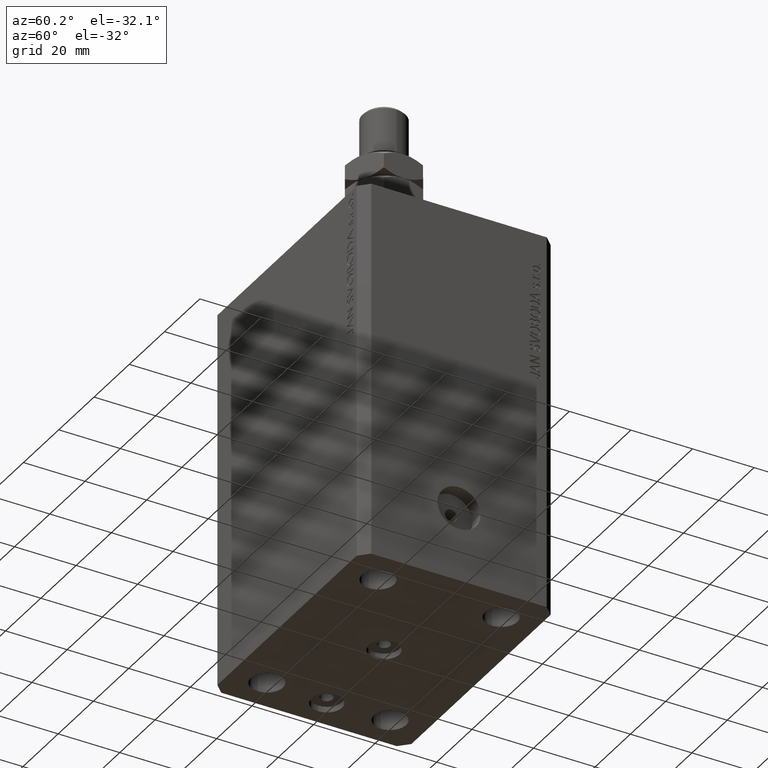
[diagram: clean part render]
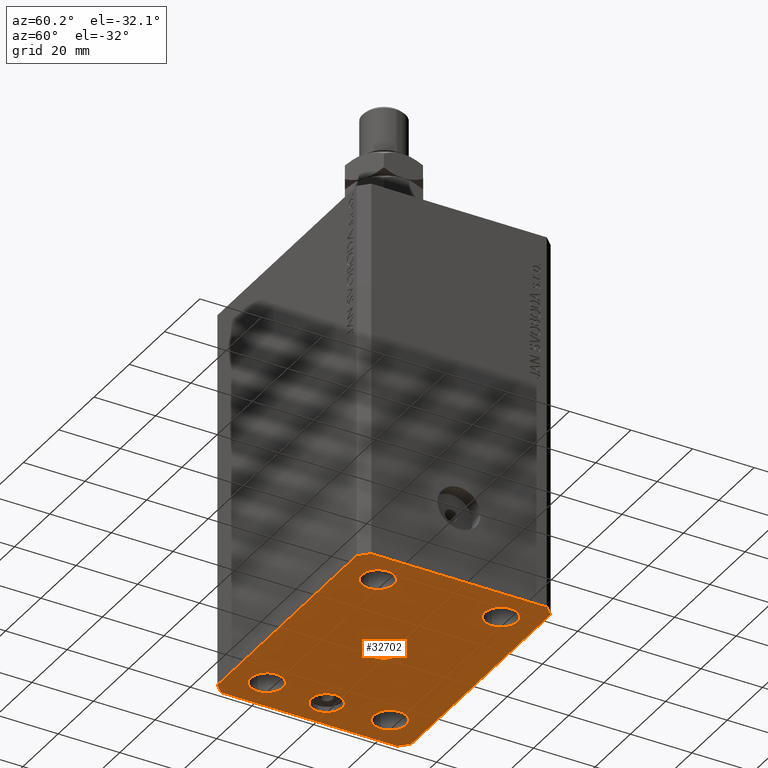
[diagram: same view with one face highlighted and labeled with its STEP entity id]
A machine part, auxiliary view. The second image highlights one B-rep face of the part: STEP entity #32702.
In plain terms, the highlighted planar face has unit normal (0, 0, 1).
Its self-contained STEP definition (entity closure, byte-faithful):
#54 = ORIENTED_EDGE ( 'NONE', *, *, #22529, .F. ) ;
#489 = ORIENTED_EDGE ( 'NONE', *, *, #44058, .F. ) ;
#1094 = CARTESIAN_POINT ( 'NONE',  ( 26.24999999999999645, -20.00000000000000355, -123.0000000000000000 ) ) ;
#1639 = CARTESIAN_POINT ( 'NONE',  ( 42.50000000000000711, -28.50000000000000355, -123.0000000000000000 ) ) ;
#1753 = CIRCLE ( 'NONE', #3247, 5.250000000000000888 ) ;
#1920 = CARTESIAN_POINT ( 'NONE',  ( 42.50000000000051870, 28.49999999999995381, -123.0000000000000000 ) ) ;
#2435 = DIRECTION ( 'NONE',  ( 1.000000000000000000, 0.000000000000000000, 0.000000000000000000 ) ) ;
#2881 = CIRCLE ( 'NONE', #45403, 5.000000000000000000 ) ;
#2909 = AXIS2_PLACEMENT_3D ( 'NONE', #22561, #41434, #5262 ) ;
#2976 = VECTOR ( 'NONE', #9412, 1000.000000000000000 ) ;
#3247 = AXIS2_PLACEMENT_3D ( 'NONE', #10179, #24424, #20927 ) ;
#3317 = DIRECTION ( 'NONE',  ( -0.7071067811865356934, 0.7071067811865594521, 0.000000000000000000 ) ) ;
#3481 = DIRECTION ( 'NONE',  ( -0.000000000000000000, -0.000000000000000000, -1.000000000000000000 ) ) ;
#3857 = CARTESIAN_POINT ( 'NONE',  ( 26.25000000000000355, 19.99999999999999289, -123.0000000000000000 ) ) ;
#4416 = DIRECTION ( 'NONE',  ( -1.000000000000000000, 0.000000000000000000, 0.000000000000000000 ) ) ;
#5090 = VERTEX_POINT ( 'NONE', #23461 ) ;
#5262 = DIRECTION ( 'NONE',  ( 1.000000000000000000, 0.000000000000000000, -0.000000000000000000 ) ) ;
#5268 = ORIENTED_EDGE ( 'NONE', *, *, #13209, .F. ) ;
#5459 = DIRECTION ( 'NONE',  ( 1.000000000000000000, 0.000000000000000000, 0.000000000000000000 ) ) ;
#5490 = CARTESIAN_POINT ( 'NONE',  ( -42.50000000000000000, -28.50000000000000000, -123.0000000000000000 ) ) ;
#5676 = LINE ( 'NONE', #12918, #2976 ) ;
#5907 = AXIS2_PLACEMENT_3D ( 'NONE', #26494, #40719, #5459 ) ;
#6576 = AXIS2_PLACEMENT_3D ( 'NONE', #20914, #32112, #14368 ) ;
#6833 = VERTEX_POINT ( 'NONE', #43114 ) ;
#7186 = VERTEX_POINT ( 'NONE', #41914 ) ;
#7369 = LINE ( 'NONE', #13920, #22624 ) ;
#7446 = DIRECTION ( 'NONE',  ( 1.000000000000000000, 0.000000000000000000, 0.000000000000000000 ) ) ;
#7850 = FACE_BOUND ( 'NONE', #30016, .T. ) ;
#8305 = PLANE ( 'NONE',  #2909 ) ;
#8360 = CARTESIAN_POINT ( 'NONE',  ( -32.50000000000000000, 0.000000000000000000, -123.0000000000000000 ) ) ;
#9412 = DIRECTION ( 'NONE',  ( -0.7071067811865471286, -0.7071067811865479058, 0.000000000000000000 ) ) ;
#9806 = AXIS2_PLACEMENT_3D ( 'NONE', #26448, #39989, #29250 ) ;
#10179 = CARTESIAN_POINT ( 'NONE',  ( -31.49999999999999289, -20.00000000000000355, -123.0000000000000000 ) ) ;
#10253 = CARTESIAN_POINT ( 'NONE',  ( -36.74999999999999289, -20.00000000000000355, -123.0000000000000000 ) ) ;
#10389 = ORIENTED_EDGE ( 'NONE', *, *, #42976, .F. ) ;
#10450 = DIRECTION ( 'NONE',  ( -0.000000000000000000, -0.000000000000000000, -1.000000000000000000 ) ) ;
#10624 = VERTEX_POINT ( 'NONE', #3857 ) ;
#11213 = VECTOR ( 'NONE', #3317, 1000.000000000000114 ) ;
#11355 = FACE_BOUND ( 'NONE', #25834, .T. ) ;
#11600 = VERTEX_POINT ( 'NONE', #31715 ) ;
#11639 = DIRECTION ( 'NONE',  ( -1.000000000000000000, 0.000000000000000000, 0.000000000000000000 ) ) ;
#11950 = AXIS2_PLACEMENT_3D ( 'NONE', #26626, #22671, #29659 ) ;
#12184 = CARTESIAN_POINT ( 'NONE',  ( -42.50000000000000000, -28.50000000000000000, -123.0000000000000000 ) ) ;
#12605 = CIRCLE ( 'NONE', #5907, 5.250000000000000888 ) ;
#12918 = CARTESIAN_POINT ( 'NONE',  ( -39.50000000000000711, 31.50000000000000000, -123.0000000000000000 ) ) ;
#13033 = ORIENTED_EDGE ( 'NONE', *, *, #16749, .F. ) ;
#13105 = CARTESIAN_POINT ( 'NONE',  ( -27.50000000000000355, 6.123233995736762338E-16, -123.0000000000000000 ) ) ;
#13209 = EDGE_CURVE ( 'NONE', #34795, #6833, #2881, .T. ) ;
#13368 = CARTESIAN_POINT ( 'NONE',  ( 0.000000000000000000, 0.000000000000000000, -123.0000000000000000 ) ) ;
#13471 = EDGE_CURVE ( 'NONE', #43988, #17608, #12605, .T. ) ;
#13590 = ORIENTED_EDGE ( 'NONE', *, *, #18170, .F. ) ;
#13920 = CARTESIAN_POINT ( 'NONE',  ( -42.50000000000000000, 28.50000000000000000, -123.0000000000000000 ) ) ;
#14085 = DIRECTION ( 'NONE',  ( 8.886653596232072440E-15, 1.000000000000000000, 0.000000000000000000 ) ) ;
#14368 = DIRECTION ( 'NONE',  ( 1.000000000000000000, 0.000000000000000000, 0.000000000000000000 ) ) ;
#14816 = ORIENTED_EDGE ( 'NONE', *, *, #13471, .F. ) ;
#15254 = ORIENTED_EDGE ( 'NONE', *, *, #21363, .F. ) ;
#16224 = LINE ( 'NONE', #5490, #40204 ) ;
#16257 = EDGE_CURVE ( 'NONE', #24549, #43728, #45577, .T. ) ;
#16454 = EDGE_LOOP ( 'NONE', ( #15254, #489 ) ) ;
#16497 = EDGE_CURVE ( 'NONE', #42942, #33513, #32081, .T. ) ;
#16662 = CARTESIAN_POINT ( 'NONE',  ( 31.49999999999999289, -20.00000000000000355, -123.0000000000000000 ) ) ;
#16749 = EDGE_CURVE ( 'NONE', #28639, #5090, #26876, .T. ) ;
#17041 = EDGE_LOOP ( 'NONE', ( #29261, #41668 ) ) ;
#17054 = EDGE_CURVE ( 'NONE', #6833, #34795, #20179, .T. ) ;
#17403 = LINE ( 'NONE', #21369, #20945 ) ;
#17444 = ORIENTED_EDGE ( 'NONE', *, *, #17054, .F. ) ;
#17491 = CARTESIAN_POINT ( 'NONE',  ( 31.50000000000000000, 19.99999999999999289, -123.0000000000000000 ) ) ;
#17608 = VERTEX_POINT ( 'NONE', #24470 ) ;
#17864 = DIRECTION ( 'NONE',  ( 0.7071067811865483499, 0.7071067811865466846, 0.000000000000000000 ) ) ;
#18170 = EDGE_CURVE ( 'NONE', #42608, #24854, #17403, .T. ) ;
#18579 = FACE_BOUND ( 'NONE', #17041, .T. ) ;
#18966 = CARTESIAN_POINT ( 'NONE',  ( -36.75000000000000000, 19.99999999999999645, -123.0000000000000000 ) ) ;
#19538 = CIRCLE ( 'NONE', #27010, 5.249999999999997335 ) ;
#19978 = DIRECTION ( 'NONE',  ( 0.000000000000000000, 0.000000000000000000, -1.000000000000000000 ) ) ;
#20147 = DIRECTION ( 'NONE',  ( 0.000000000000000000, 0.000000000000000000, -1.000000000000000000 ) ) ;
#20179 = CIRCLE ( 'NONE', #37342, 5.000000000000000000 ) ;
#20325 = ORIENTED_EDGE ( 'NONE', *, *, #38758, .F. ) ;
#20763 = DIRECTION ( 'NONE',  ( 1.000000000000000000, 0.000000000000000000, 0.000000000000000000 ) ) ;
#20914 = CARTESIAN_POINT ( 'NONE',  ( 31.49999999999999289, -20.00000000000000355, -123.0000000000000000 ) ) ;
#20927 = DIRECTION ( 'NONE',  ( 1.000000000000000000, 0.000000000000000000, 0.000000000000000000 ) ) ;
#20945 = VECTOR ( 'NONE', #17864, 1000.000000000000000 ) ;
#21362 = EDGE_LOOP ( 'NONE', ( #36555, #32106 ) ) ;
#21363 = EDGE_CURVE ( 'NONE', #38842, #10624, #32867, .T. ) ;
#21369 = CARTESIAN_POINT ( 'NONE',  ( 39.50000000000000711, -31.50000000000000000, -123.0000000000000000 ) ) ;
#21681 = CIRCLE ( 'NONE', #32115, 5.249999999999997335 ) ;
#22091 = FACE_BOUND ( 'NONE', #16454, .T. ) ;
#22497 = CARTESIAN_POINT ( 'NONE',  ( -39.50000000000000711, -31.50000000000000000, -123.0000000000000000 ) ) ;
#22529 = EDGE_CURVE ( 'NONE', #11600, #7186, #5676, .T. ) ;
#22561 = CARTESIAN_POINT ( 'NONE',  ( 0.000000000000000000, 0.000000000000000000, -123.0000000000000000 ) ) ;
#22624 = VECTOR ( 'NONE', #42859, 1000.000000000000000 ) ;
#22671 = DIRECTION ( 'NONE',  ( -0.000000000000000000, -0.000000000000000000, -1.000000000000000000 ) ) ;
#23343 = VECTOR ( 'NONE', #14085, 1000.000000000000000 ) ;
#23387 = CARTESIAN_POINT ( 'NONE',  ( 36.75000000000000000, 19.99999999999999289, -123.0000000000000000 ) ) ;
#23438 = EDGE_CURVE ( 'NONE', #44199, #29958, #21681, .T. ) ;
#23461 = CARTESIAN_POINT ( 'NONE',  ( -37.50000000000000000, 0.000000000000000000, -123.0000000000000000 ) ) ;
#23991 = ORIENTED_EDGE ( 'NONE', *, *, #31803, .F. ) ;
#24158 = CARTESIAN_POINT ( 'NONE',  ( 36.74999999999999289, -20.00000000000000355, -123.0000000000000000 ) ) ;
#24424 = DIRECTION ( 'NONE',  ( -0.000000000000000000, -0.000000000000000000, -1.000000000000000000 ) ) ;
#24470 = CARTESIAN_POINT ( 'NONE',  ( -26.24999999999999289, -20.00000000000000355, -123.0000000000000000 ) ) ;
#24549 = VERTEX_POINT ( 'NONE', #1920 ) ;
#24854 = VERTEX_POINT ( 'NONE', #1639 ) ;
#25504 = ORIENTED_EDGE ( 'NONE', *, *, #38608, .F. ) ;
#25608 = FACE_BOUND ( 'NONE', #45695, .T. ) ;
#25834 = EDGE_LOOP ( 'NONE', ( #17444, #5268 ) ) ;
#25862 = EDGE_CURVE ( 'NONE', #33513, #42942, #34886, .T. ) ;
#26318 = CARTESIAN_POINT ( 'NONE',  ( 0.000000000000000000, 0.000000000000000000, -123.0000000000000000 ) ) ;
#26448 = CARTESIAN_POINT ( 'NONE',  ( -32.50000000000000000, 0.000000000000000000, -123.0000000000000000 ) ) ;
#26494 = CARTESIAN_POINT ( 'NONE',  ( -31.49999999999999289, -20.00000000000000355, -123.0000000000000000 ) ) ;
#26506 = CARTESIAN_POINT ( 'NONE',  ( 39.50000000000000711, -31.50000000000000000, -123.0000000000000000 ) ) ;
#26626 = CARTESIAN_POINT ( 'NONE',  ( -31.50000000000000000, 19.99999999999999645, -123.0000000000000000 ) ) ;
#26677 = AXIS2_PLACEMENT_3D ( 'NONE', #43619, #3481, #7446 ) ;
#26876 = CIRCLE ( 'NONE', #35852, 4.999999999999997335 ) ;
#27010 = AXIS2_PLACEMENT_3D ( 'NONE', #17491, #31262, #20763 ) ;
#27467 = VECTOR ( 'NONE', #2435, 1000.000000000000000 ) ;
#28559 = LINE ( 'NONE', #31823, #23343 ) ;
#28639 = VERTEX_POINT ( 'NONE', #13105 ) ;
#29250 = DIRECTION ( 'NONE',  ( -1.000000000000000000, 0.000000000000000000, 0.000000000000000000 ) ) ;
#29261 = ORIENTED_EDGE ( 'NONE', *, *, #23438, .F. ) ;
#29547 = FACE_BOUND ( 'NONE', #21362, .T. ) ;
#29659 = DIRECTION ( 'NONE',  ( 1.000000000000000000, 0.000000000000000000, 0.000000000000000000 ) ) ;
#29958 = VERTEX_POINT ( 'NONE', #1094 ) ;
#30016 = EDGE_LOOP ( 'NONE', ( #25504, #14816 ) ) ;
#30050 = EDGE_CURVE ( 'NONE', #29958, #44199, #42379, .T. ) ;
#31262 = DIRECTION ( 'NONE',  ( -0.000000000000000000, -0.000000000000000000, -1.000000000000000000 ) ) ;
#31448 = ORIENTED_EDGE ( 'NONE', *, *, #16257, .F. ) ;
#31715 = CARTESIAN_POINT ( 'NONE',  ( -39.50000000000000711, 31.50000000000000000, -123.0000000000000000 ) ) ;
#31803 = EDGE_CURVE ( 'NONE', #44439, #42608, #44467, .T. ) ;
#31823 = CARTESIAN_POINT ( 'NONE',  ( 42.50000000000000711, -28.50000000000000355, -123.0000000000000000 ) ) ;
#32081 = CIRCLE ( 'NONE', #11950, 5.250000000000000888 ) ;
#32106 = ORIENTED_EDGE ( 'NONE', *, *, #16497, .F. ) ;
#32112 = DIRECTION ( 'NONE',  ( -0.000000000000000000, -0.000000000000000000, -1.000000000000000000 ) ) ;
#32115 = AXIS2_PLACEMENT_3D ( 'NONE', #16662, #45150, #41639 ) ;
#32702 = ADVANCED_FACE ( 'NONE', ( #11355, #25608, #7850, #18579, #22091, #29547, #36327 ), #8305, .F. ) ;
#32802 = EDGE_CURVE ( 'NONE', #38051, #44439, #16224, .T. ) ;
#32867 = CIRCLE ( 'NONE', #44793, 5.249999999999997335 ) ;
#32895 = CARTESIAN_POINT ( 'NONE',  ( 39.50000000000056843, 31.50000000000000000, -123.0000000000000000 ) ) ;
#33513 = VERTEX_POINT ( 'NONE', #39670 ) ;
#34231 = DIRECTION ( 'NONE',  ( -1.000000000000000000, 0.000000000000000000, 0.000000000000000000 ) ) ;
#34432 = CARTESIAN_POINT ( 'NONE',  ( -39.50000000000000711, -31.50000000000000000, -123.0000000000000000 ) ) ;
#34668 = EDGE_LOOP ( 'NONE', ( #38620, #31448, #42123, #13590, #23991, #35425, #20325, #54 ) ) ;
#34795 = VERTEX_POINT ( 'NONE', #38971 ) ;
#34886 = CIRCLE ( 'NONE', #26677, 5.250000000000000888 ) ;
#35204 = CARTESIAN_POINT ( 'NONE',  ( 31.50000000000000000, 19.99999999999999289, -123.0000000000000000 ) ) ;
#35425 = ORIENTED_EDGE ( 'NONE', *, *, #32802, .F. ) ;
#35852 = AXIS2_PLACEMENT_3D ( 'NONE', #8360, #43621, #11639 ) ;
#36327 = FACE_OUTER_BOUND ( 'NONE', #34668, .T. ) ;
#36555 = ORIENTED_EDGE ( 'NONE', *, *, #25862, .F. ) ;
#37342 = AXIS2_PLACEMENT_3D ( 'NONE', #13368, #20147, #42319 ) ;
#37796 = EDGE_CURVE ( 'NONE', #24854, #24549, #28559, .T. ) ;
#38051 = VERTEX_POINT ( 'NONE', #12184 ) ;
#38143 = CIRCLE ( 'NONE', #9806, 4.999999999999997335 ) ;
#38608 = EDGE_CURVE ( 'NONE', #17608, #43988, #1753, .T. ) ;
#38620 = ORIENTED_EDGE ( 'NONE', *, *, #40970, .F. ) ;
#38758 = EDGE_CURVE ( 'NONE', #7186, #38051, #7369, .T. ) ;
#38842 = VERTEX_POINT ( 'NONE', #23387 ) ;
#38935 = DIRECTION ( 'NONE',  ( 1.000000000000000000, 0.000000000000000000, 0.000000000000000000 ) ) ;
#38971 = CARTESIAN_POINT ( 'NONE',  ( 5.000000000000000000, 6.123233995736765296E-16, -123.0000000000000000 ) ) ;
#39670 = CARTESIAN_POINT ( 'NONE',  ( -26.25000000000000000, 19.99999999999999645, -123.0000000000000000 ) ) ;
#39989 = DIRECTION ( 'NONE',  ( 0.000000000000000000, 0.000000000000000000, -1.000000000000000000 ) ) ;
#40204 = VECTOR ( 'NONE', #44712, 1000.000000000000000 ) ;
#40719 = DIRECTION ( 'NONE',  ( -0.000000000000000000, -0.000000000000000000, -1.000000000000000000 ) ) ;
#40970 = EDGE_CURVE ( 'NONE', #43728, #11600, #43628, .T. ) ;
#41340 = VECTOR ( 'NONE', #4416, 1000.000000000000000 ) ;
#41434 = DIRECTION ( 'NONE',  ( 0.000000000000000000, 0.000000000000000000, 1.000000000000000000 ) ) ;
#41639 = DIRECTION ( 'NONE',  ( 1.000000000000000000, 0.000000000000000000, 0.000000000000000000 ) ) ;
#41668 = ORIENTED_EDGE ( 'NONE', *, *, #30050, .F. ) ;
#41839 = CARTESIAN_POINT ( 'NONE',  ( 42.50000000000051870, 28.49999999999995381, -123.0000000000000000 ) ) ;
#41914 = CARTESIAN_POINT ( 'NONE',  ( -42.50000000000000000, 28.50000000000000000, -123.0000000000000000 ) ) ;
#42123 = ORIENTED_EDGE ( 'NONE', *, *, #37796, .F. ) ;
#42319 = DIRECTION ( 'NONE',  ( -1.000000000000000000, 0.000000000000000000, 0.000000000000000000 ) ) ;
#42379 = CIRCLE ( 'NONE', #6576, 5.249999999999997335 ) ;
#42536 = CARTESIAN_POINT ( 'NONE',  ( 39.50000000000056843, 31.50000000000000000, -123.0000000000000000 ) ) ;
#42608 = VERTEX_POINT ( 'NONE', #26506 ) ;
#42859 = DIRECTION ( 'NONE',  ( 0.000000000000000000, -1.000000000000000000, 0.000000000000000000 ) ) ;
#42942 = VERTEX_POINT ( 'NONE', #18966 ) ;
#42976 = EDGE_CURVE ( 'NONE', #5090, #28639, #38143, .T. ) ;
#43114 = CARTESIAN_POINT ( 'NONE',  ( -5.000000000000000000, 0.000000000000000000, -123.0000000000000000 ) ) ;
#43619 = CARTESIAN_POINT ( 'NONE',  ( -31.50000000000000000, 19.99999999999999645, -123.0000000000000000 ) ) ;
#43621 = DIRECTION ( 'NONE',  ( 0.000000000000000000, 0.000000000000000000, -1.000000000000000000 ) ) ;
#43628 = LINE ( 'NONE', #32895, #41340 ) ;
#43728 = VERTEX_POINT ( 'NONE', #42536 ) ;
#43988 = VERTEX_POINT ( 'NONE', #10253 ) ;
#44058 = EDGE_CURVE ( 'NONE', #10624, #38842, #19538, .T. ) ;
#44199 = VERTEX_POINT ( 'NONE', #24158 ) ;
#44439 = VERTEX_POINT ( 'NONE', #22497 ) ;
#44467 = LINE ( 'NONE', #34432, #27467 ) ;
#44712 = DIRECTION ( 'NONE',  ( 0.7071067811865471286, -0.7071067811865479058, 0.000000000000000000 ) ) ;
#44793 = AXIS2_PLACEMENT_3D ( 'NONE', #35204, #10450, #38935 ) ;
#45150 = DIRECTION ( 'NONE',  ( -0.000000000000000000, -0.000000000000000000, -1.000000000000000000 ) ) ;
#45403 = AXIS2_PLACEMENT_3D ( 'NONE', #26318, #19978, #34231 ) ;
#45577 = LINE ( 'NONE', #41839, #11213 ) ;
#45695 = EDGE_LOOP ( 'NONE', ( #10389, #13033 ) ) ;